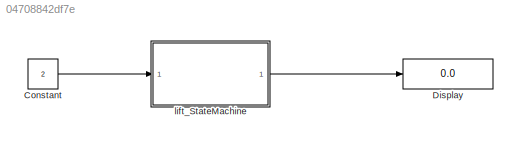
MODEL slx_04708842df7e
KIND model
CONFIG AbsTol = auto
CONFIG EnableMultiTasking = off
CONFIG FixedStep = auto
CONFIG MaxStep = auto
CONFIG MinStep = auto
CONFIG RelTol = 1e-3
CONFIG SampleTimeConstraint = Unconstrained
CONFIG SolverName = VariableStepAuto
CONFIG StartTime = 0.0
CONFIG StopTime = 10.0
BLOCK [Constant] Constant
  Value = 2
BLOCK [Display] Display
  Decimation = 1
  Ports = [1]
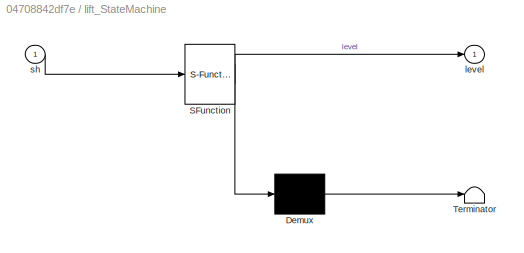
BLOCK [SubSystem] lift_StateMachine
  ErrorFcn = Stateflow.Translate.translate
  PermitHierarchicalResolution = ExplicitOnly
  Ports = [1, 1]
  RequestExecContextInheritance = off
  SFBlockType = Chart
  TreatAsAtomicUnit = on
BLOCK [Demux] lift_StateMachine/ Demux 
  Outputs = 1
  Ports = [1, 1]
BLOCK [S-Function] lift_StateMachine/ SFunction 
  EnableBusSupport = on
  FunctionName = sf_sfun
  PortCounts = [1 2]
  Ports = [1, 2]
  SFcnIsStateOwnerBlock = off
  SFunctionDeploymentMode = off
  Tag = Stateflow S-Function 3
BLOCK [Terminator] lift_StateMachine/ Terminator 
BLOCK [Outport] lift_StateMachine/level
BLOCK [Inport] lift_StateMachine/sh
LINE Constant:1 -> lift_StateMachine:1
LINE lift_StateMachine:1 -> Display:1
CHART lift_StateMachine states=5 transitions=11
  STATE_LABEL 'floor4\nentry:\nlevel=4;\ncurr_st=level;'
  STATE_LABEL 'floor5\nentry:\nlevel=5;\ncurr_st=level;'
  STATE_LABEL 'floor2\nentry:\nlevel=2;\ncurr_st=level;\n'
  STATE_LABEL 'floor3\nentry:\nlevel=3;\ncurr_st=level;'
  STATE_LABEL 'floor1\nentry:\ncurr_st=1;\nlevel=1;'
CHART  states=0 transitions=0
